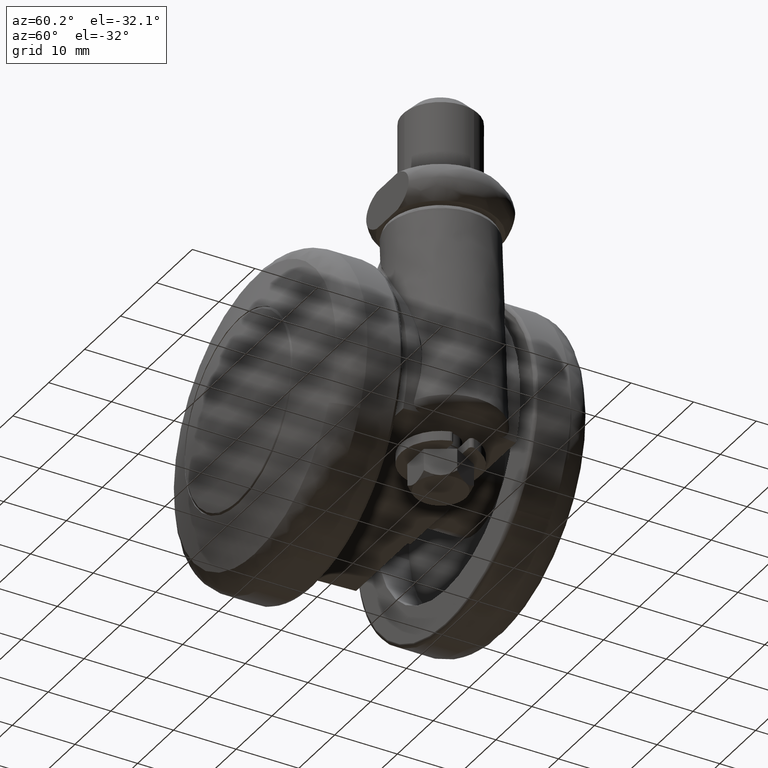
[diagram: clean part render]
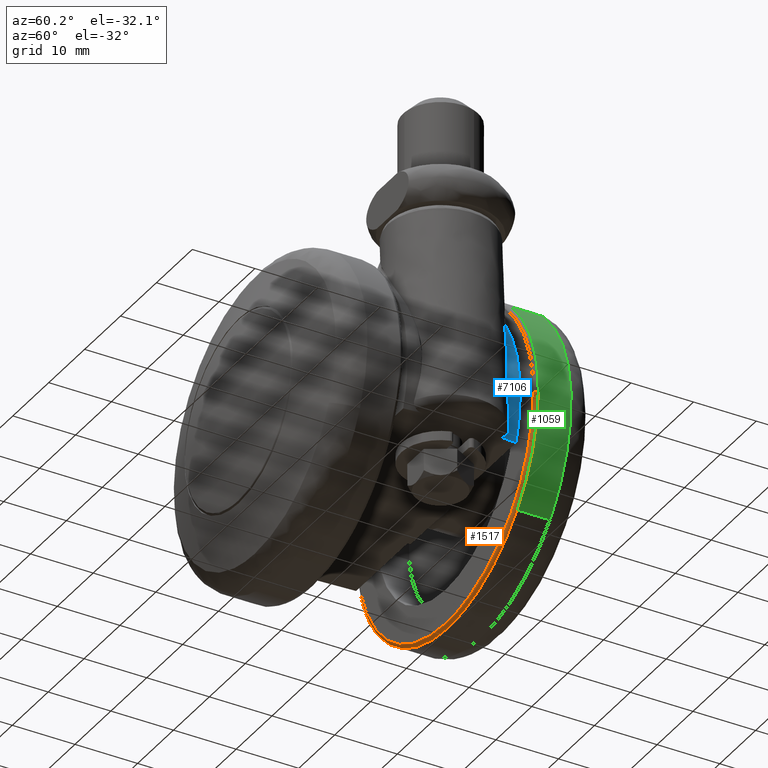
[diagram: same view with three faces highlighted in distinct colors, each labeled with its STEP entity id]
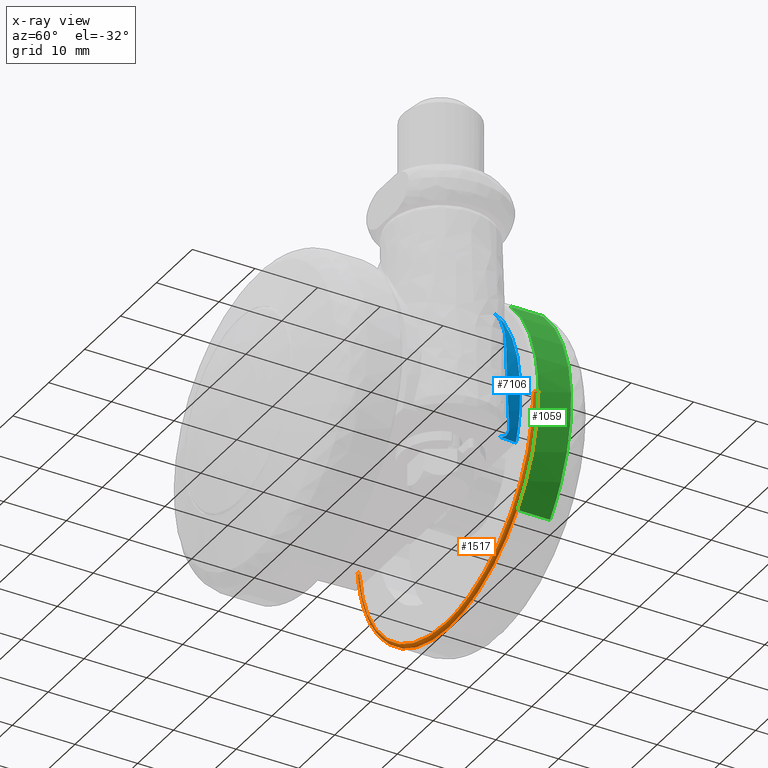
[diagram: x-ray of the same camera — body ghosted, the three highlighted faces saturated]
A machine part, auxiliary view with three faces highlighted in distinct colors.
The next image is the same camera in x-ray (body ghosted, the three faces saturated) — at least one of them is partly hidden behind the body in this view.
Their STEP definitions:

[orange] entity #1517 — the highlighted face is a freeform B-spline surface patch.
#859=CARTESIAN_POINT('',(-19.088892241141721,-10.999999999812241,-16.143549578889889));
#860=VERTEX_POINT('',#859);
#866=CARTESIAN_POINT('',(0.0,-11.0,-25.0));
#867=VERTEX_POINT('',#866);
#868=CARTESIAN_POINT('',(-19.088892241141782,-10.999999999812246,-16.143549578889932));
#869=CARTESIAN_POINT('',(-11.598958060570427,-11.0,-24.999999999999993));
#870=CARTESIAN_POINT('',(0.0,-11.0,-25.0));
#878=(BOUNDED_CURVE()B_SPLINE_CURVE(2,(#868,#869,#870),.UNSPECIFIED.,.F.,.U.)B_SPLINE_CURVE_WITH_KNOTS((3,3),(0.862408078791290,1.0),.UNSPECIFIED.)CURVE()GEOMETRIC_REPRESENTATION_ITEM()RATIONAL_B_SPLINE_CURVE((0.855039474360019,0.838801037257816,1.0))REPRESENTATION_ITEM(''));
#879=EDGE_CURVE('',#860,#867,#878,.T.);
#881=CARTESIAN_POINT('',(24.832790969626899,-10.999999999485651,-2.886605733178072));
#882=VERTEX_POINT('',#881);
#883=CARTESIAN_POINT('',(0.0,-11.0,-25.0));
#884=CARTESIAN_POINT('',(22.262292520671355,-10.999999999999998,-25.000000000000004));
#885=CARTESIAN_POINT('',(24.832790969626899,-10.999999999485654,-2.886605733178072));
#893=(BOUNDED_CURVE()B_SPLINE_CURVE(2,(#883,#884,#885),.UNSPECIFIED.,.F.,.U.)B_SPLINE_CURVE_WITH_KNOTS((3,3),(0.0,0.229999999999983),.UNSPECIFIED.)CURVE()GEOMETRIC_REPRESENTATION_ITEM()RATIONAL_B_SPLINE_CURVE((1.0,0.730538238691643,0.956886118190627))REPRESENTATION_ITEM(''));
#894=EDGE_CURVE('',#867,#882,#893,.T.);
#1028=CARTESIAN_POINT('',(-25.0,-10.999999999470010,3.546573E-015));
#1029=VERTEX_POINT('',#1028);
#1043=CARTESIAN_POINT('',(-25.0,-10.999999999470010,3.546573E-015));
#1044=CARTESIAN_POINT('',(-24.999999999999996,-10.999999999664070,-9.153977769839207));
#1045=CARTESIAN_POINT('',(-19.088892241141782,-10.999999999812246,-16.143549578889932));
#1053=(BOUNDED_CURVE()B_SPLINE_CURVE(2,(#1043,#1044,#1045),.UNSPECIFIED.,.F.,.U.)B_SPLINE_CURVE_WITH_KNOTS((3,3),(0.750000000000000,0.862408078791290),.UNSPECIFIED.)CURVE()GEOMETRIC_REPRESENTATION_ITEM()RATIONAL_B_SPLINE_CURVE((1.0,0.868305743928731,0.855039474360019))REPRESENTATION_ITEM(''));
#1054=EDGE_CURVE('',#1029,#860,#1053,.T.);
#1393=CARTESIAN_POINT('',(24.336135158453711,-10.500000000000000,-2.828873619561032));
#1394=VERTEX_POINT('',#1393);
#1412=CARTESIAN_POINT('',(-24.500000000183661,-10.500000000000000,3.546847E-015));
#1413=VERTEX_POINT('',#1412);
#1427=CARTESIAN_POINT('',(-24.500000000183661,-10.500000000000002,3.546847E-015));
#1428=CARTESIAN_POINT('',(-24.999999998940005,-10.500000000367328,3.497002E-015));
#1429=CARTESIAN_POINT('',(-25.0,-10.999999999470006,3.546573E-015));
#1437=(BOUNDED_CURVE()B_SPLINE_CURVE(2,(#1427,#1428,#1429),.UNSPECIFIED.,.F.,.U.)B_SPLINE_CURVE_WITH_KNOTS((3,3),(-1.736413120311833,-0.276558720197933),.UNSPECIFIED.)CURVE()GEOMETRIC_REPRESENTATION_ITEM()RATIONAL_B_SPLINE_CURVE((0.888510408789768,0.626638727763065,0.883897566369383))REPRESENTATION_ITEM(''));
#1438=EDGE_CURVE('',#1413,#1029,#1437,.T.);
#1443=CARTESIAN_POINT('',(24.336135158453715,-10.500000000000000,-2.828873619561032));
#1444=CARTESIAN_POINT('',(24.832790968605213,-10.500000016570423,-2.886605733058068));
#1445=CARTESIAN_POINT('',(24.832790969626910,-10.999999999485647,-2.886605733178072));
#1453=(BOUNDED_CURVE()B_SPLINE_CURVE(2,(#1443,#1444,#1445),.UNSPECIFIED.,.F.,.U.)B_SPLINE_CURVE_WITH_KNOTS((3,3),(-1.736413086772618,-0.276558720133518),.UNSPECIFIED.)CURVE()GEOMETRIC_REPRESENTATION_ITEM()RATIONAL_B_SPLINE_CURVE((0.850203264524946,0.599621905361615,0.845789311183094))REPRESENTATION_ITEM(''));
#1454=EDGE_CURVE('',#1394,#882,#1453,.T.);
#1459=CARTESIAN_POINT('',(-24.465323893071862,-10.501203881722894,4.967467E-015));
#1460=CARTESIAN_POINT('',(-24.465323893071869,-10.501203881722894,-24.465323893071854));
#1461=CARTESIAN_POINT('',(-2.996039E-015,-10.501203881722894,-24.465323893071862));
#1462=CARTESIAN_POINT('',(21.786167884823620,-10.501203881722892,-24.465323893071865));
#1463=CARTESIAN_POINT('',(24.301690969635029,-10.501203881722896,-2.824869768550792));
#1464=CARTESIAN_POINT('',(-25.038869747941046,-10.461331202961233,5.002585E-015));
#1465=CARTESIAN_POINT('',(-25.038869747941046,-10.461331202961235,-25.038869747941046));
#1466=CARTESIAN_POINT('',(-3.066276E-015,-10.461331202961233,-25.038869747941046));
#1467=CARTESIAN_POINT('',(22.296905708628319,-10.461331202961231,-25.038869747941046));
#1468=CARTESIAN_POINT('',(24.871400742653535,-10.461331202961235,-2.891093798666999));
#1469=CARTESIAN_POINT('',(-24.998783150040587,-11.034862146170063,5.000130E-015));
#1470=CARTESIAN_POINT('',(-24.998783150040577,-11.034862146170068,-24.998783150040577));
#1471=CARTESIAN_POINT('',(-3.061367E-015,-11.034862146170063,-24.998783150040577));
#1472=CARTESIAN_POINT('',(22.261208925883569,-11.034862146170068,-24.998783150040595));
#1473=CARTESIAN_POINT('',(24.831582258399706,-11.034862146170068,-2.886465230534078));
#1481=(BOUNDED_SURFACE()B_SPLINE_SURFACE(2,2,((#1459,#1464,#1469),(#1460,#1465,#1470),(#1461,#1466,#1471),(#1462,#1467,#1472),(#1463,#1468,#1473)),.UNSPECIFIED.,.F.,.F.,.U.)B_SPLINE_SURFACE_WITH_KNOTS((3,2,3),(3,3),(0.0,41.419340094283250,79.525132981023830),(0.0,0.911186219760398),.UNSPECIFIED.)GEOMETRIC_REPRESENTATION_ITEM()RATIONAL_B_SPLINE_SURFACE(((0.915967312822174,0.599412571295306,0.910892985869050),(0.647686698241779,0.423848693891376,0.644098607243267),(0.915967312822174,0.599412571295306,0.910892985869050),(0.669149147408211,0.437893804083691,0.665442157533330),(0.876476406355940,0.573569568541448,0.871620853335334)))REPRESENTATION_ITEM('')SURFACE());
#1482=CARTESIAN_POINT('',(0.0,-10.500000000000000,-24.500000000000000));
#1483=VERTEX_POINT('',#1482);
#1484=CARTESIAN_POINT('',(0.0,-10.500000000000000,-24.500000000000000));
#1485=CARTESIAN_POINT('',(21.817046670095717,-10.500000000000000,-24.499999999999996));
#1486=CARTESIAN_POINT('',(24.336135158453715,-10.499999999999998,-2.828873619561032));
#1494=(BOUNDED_CURVE()B_SPLINE_CURVE(2,(#1484,#1485,#1486),.UNSPECIFIED.,.F.,.U.)B_SPLINE_CURVE_WITH_KNOTS((3,3),(0.0,0.229999999998734),.UNSPECIFIED.)CURVE()GEOMETRIC_REPRESENTATION_ITEM()RATIONAL_B_SPLINE_CURVE((1.0,0.730538238693107,0.956886118188168))REPRESENTATION_ITEM(''));
#1495=EDGE_CURVE('',#1483,#1394,#1494,.T.);
#1496=ORIENTED_EDGE('',*,*,#1495,.T.);
#1497=ORIENTED_EDGE('',*,*,#1454,.T.);
#1498=ORIENTED_EDGE('',*,*,#894,.F.);
#1499=ORIENTED_EDGE('',*,*,#879,.F.);
#1500=ORIENTED_EDGE('',*,*,#1054,.F.);
#1501=ORIENTED_EDGE('',*,*,#1438,.F.);
#1502=CARTESIAN_POINT('',(-24.500000000183661,-10.500000000000000,3.546847E-015));
#1503=CARTESIAN_POINT('',(-24.499999999999993,-10.500000000000000,-24.499999999999993));
#1504=CARTESIAN_POINT('',(0.0,-10.500000000000000,-24.500000000000000));
#1512=(BOUNDED_CURVE()B_SPLINE_CURVE(2,(#1502,#1503,#1504),.UNSPECIFIED.,.F.,.U.)B_SPLINE_CURVE_WITH_KNOTS((3,3),(0.750000000000000,1.0),.UNSPECIFIED.)CURVE()GEOMETRIC_REPRESENTATION_ITEM()RATIONAL_B_SPLINE_CURVE((1.0,0.707106781186547,1.0))REPRESENTATION_ITEM(''));
#1513=EDGE_CURVE('',#1413,#1483,#1512,.T.);
#1514=ORIENTED_EDGE('',*,*,#1513,.T.);
#1515=EDGE_LOOP('',(#1496,#1497,#1498,#1499,#1500,#1501,#1514));
#1516=FACE_OUTER_BOUND('',#1515,.T.);
#1517=ADVANCED_FACE('',(#1516),#1481,.T.);

[blue] entity #7106 — the highlighted face is a freeform B-spline surface patch.
#5330=CARTESIAN_POINT('',(22.859472237033650,7.557258832530200,-5.944913710180160));
#5331=VERTEX_POINT('',#5330);
#5347=CARTESIAN_POINT('',(22.508473345036649,6.008970139218520,-7.500000000000000));
#5348=VERTEX_POINT('',#5347);
#5368=CARTESIAN_POINT('',(22.859472237033639,7.557258832530212,-5.944913710180165));
#5369=CARTESIAN_POINT('',(22.845347138984810,7.564525459840313,-5.996621736036759));
#5370=CARTESIAN_POINT('',(22.817254517073721,7.578977650748001,-6.099460952807962));
#5371=CARTESIAN_POINT('',(22.775110222079459,7.576472985918750,-6.255476035051276));
#5372=CARTESIAN_POINT('',(22.733589654280980,7.555714660842550,-6.410583780616468));
#5373=CARTESIAN_POINT('',(22.679860974324271,7.502475385351057,-6.613337105601644));
#5374=CARTESIAN_POINT('',(22.617181306565389,7.393584463970646,-6.853319514282594));
#5375=CARTESIAN_POINT('',(22.551462283653429,7.172065584943179,-7.120477657406914));
#5376=CARTESIAN_POINT('',(22.503545053919829,6.860126074050095,-7.341158383501779));
#5377=CARTESIAN_POINT('',(22.484720487686559,6.451608159627006,-7.485223112365691));
#5378=CARTESIAN_POINT('',(22.500320880463789,6.160892525935901,-7.494928271106090));
#5379=CARTESIAN_POINT('',(22.508473345036649,6.008970139218521,-7.500000000000034));
#5380=B_SPLINE_CURVE_WITH_KNOTS('',3,(#5368,#5369,#5370,#5371,#5372,#5373,#5374,#5375,#5376,#5377,#5378,#5379),.UNSPECIFIED.,.F.,.U.,(4,1,1,1,1,1,1,1,1,4),(0.0,0.063197402396594,0.125689798764796,0.188384347928890,0.252179452144803,0.378410248853935,0.501744799446879,0.661062130236840,0.822877602179332,1.0),.UNSPECIFIED.);
#5381=EDGE_CURVE('',#5331,#5348,#5380,.T.);
#5506=CARTESIAN_POINT('',(15.987109898350051,8.999999997297421,17.224073311950999));
#5507=VERTEX_POINT('',#5506);
#5552=CARTESIAN_POINT('',(15.987109898350051,8.999999997297421,17.224073311950999));
#5553=CARTESIAN_POINT('',(16.120306098309928,8.986237419856050,17.100462468158071));
#5554=CARTESIAN_POINT('',(16.400290341086290,8.957307879638437,16.840627063629011));
#5555=CARTESIAN_POINT('',(16.828059439204331,8.899916391611106,16.420042618498140));
#5556=CARTESIAN_POINT('',(17.283834082584221,8.830094054547516,15.949873536413270));
#5557=CARTESIAN_POINT('',(17.763083790163730,8.746779224185607,15.426291065152430));
#5558=CARTESIAN_POINT('',(18.358696559718819,8.631125084540905,14.734343928547551));
#5559=CARTESIAN_POINT('',(19.174214730118571,8.454187220517662,13.700937536991409));
#5560=CARTESIAN_POINT('',(19.937457251528961,8.276736107010089,12.585076771176039));
#5561=CARTESIAN_POINT('',(20.596795065058249,8.093829653300572,11.488905978315710));
#5562=CARTESIAN_POINT('',(21.103474150454961,7.926823451379988,10.565633259621590));
#5563=CARTESIAN_POINT('',(21.718404343048299,7.691922747831107,9.304541249700881));
#5564=CARTESIAN_POINT('',(22.270523165710131,7.444499204481090,7.947985056781145));
#5565=CARTESIAN_POINT('',(22.774124979581028,7.186908804466797,6.422330697271317));
#5566=CARTESIAN_POINT('',(23.143930291227129,6.992911037861330,5.004153472505241));
#5567=CARTESIAN_POINT('',(23.436076405493608,6.842329324602295,3.446824175787090));
#5568=CARTESIAN_POINT('',(23.618177521789580,6.777347184170083,1.893486910387614));
#5569=CARTESIAN_POINT('',(23.690125156980510,6.792400230195062,0.317196278516075));
#5570=CARTESIAN_POINT('',(23.651355192239549,6.891654275512122,-1.274846850814564));
#5571=CARTESIAN_POINT('',(23.523986569621929,7.038334505625166,-2.622224582919101));
#5572=CARTESIAN_POINT('',(23.344854786952020,7.204045110374032,-3.800749084159956));
#5573=CARTESIAN_POINT('',(23.146734815529300,7.365225143021434,-4.831388397263618));
#5574=CARTESIAN_POINT('',(22.959515240381851,7.490380552932833,-5.557113749629076));
#5575=CARTESIAN_POINT('',(22.859472237033650,7.557258832530200,-5.944913710180160));
#5576=B_SPLINE_CURVE_WITH_KNOTS('',3,(#5552,#5553,#5554,#5555,#5556,#5557,#5558,#5559,#5560,#5561,#5562,#5563,#5564,#5565,#5566,#5567,#5568,#5569,#5570,#5571,#5572,#5573,#5574,#5575),.UNSPECIFIED.,.F.,.U.,(4,1,1,1,1,1,1,1,1,1,1,1,1,1,1,1,1,1,1,1,1,4),(0.0,0.021329994640280,0.044836582421883,0.070526176644383,0.098404437260415,0.128476552372200,0.178229425956275,0.253813648161927,0.287875128194325,0.329458890949756,0.378582253604620,0.454323879246779,0.503107788537868,0.568964059642171,0.627169356967948,0.689224719074587,0.751942581923512,0.811631865765096,0.875786090670811,0.911076711651361,0.952482784842399,1.0),.UNSPECIFIED.);
#5577=EDGE_CURVE('',#5507,#5331,#5576,.T.);
#6963=CARTESIAN_POINT('',(22.271056962330899,9.0,-7.500000000000000));
#6964=VERTEX_POINT('',#6963);
#6965=CARTESIAN_POINT('',(15.987109898350051,8.999999997297421,17.224073311950999));
#6966=CARTESIAN_POINT('',(27.117918141920033,8.999999998648709,6.892541800001062));
#6967=CARTESIAN_POINT('',(22.271056962330899,9.0,-7.500000000000000));
#6975=(BOUNDED_CURVE()B_SPLINE_CURVE(2,(#6965,#6966,#6967),.UNSPECIFIED.,.F.,.U.)CURVE()GEOMETRIC_REPRESENTATION_ITEM()QUASI_UNIFORM_CURVE()RATIONAL_B_SPLINE_CURVE((1.0,0.839882926631558,1.0))REPRESENTATION_ITEM(''));
#6976=EDGE_CURVE('',#5507,#6964,#6975,.T.);
#6993=CARTESIAN_POINT('',(22.508473345036649,6.008970139218520,-7.500000000000000));
#6994=CARTESIAN_POINT('',(22.445029146177308,7.008649669417468,-7.500000000000000));
#6995=CARTESIAN_POINT('',(22.365875098585281,8.005657028487292,-7.500000000000001));
#6996=CARTESIAN_POINT('',(22.271056962330899,9.0,-7.500000000000000));
#6997=B_SPLINE_CURVE_WITH_KNOTS('',3,(#6993,#6994,#6995,#6996),.UNSPECIFIED.,.F.,.U.,(4,4),(0.0,0.012657862134114),.UNSPECIFIED.);
#6998=EDGE_CURVE('',#5348,#6964,#6997,.T.);
#7077=CARTESIAN_POINT('',(14.896400824027547,9.149119175906902,18.157884528158508));
#7078=CARTESIAN_POINT('',(14.992135447736631,7.506262200548648,18.274579712665908));
#7079=CARTESIAN_POINT('',(15.053446248472456,5.859320285281365,18.349314170555537));
#7080=CARTESIAN_POINT('',(23.486411561752607,9.149119175906897,11.110794718031254));
#7081=CARTESIAN_POINT('',(23.637351563951942,7.506262200548648,11.182200406157198));
#7082=CARTESIAN_POINT('',(23.734017242881563,5.859320285281367,11.227930359923960));
#7083=CARTESIAN_POINT('',(23.486411561752611,9.149119175906895,0.0));
#7084=CARTESIAN_POINT('',(23.637351563951952,7.506262200548647,0.0));
#7085=CARTESIAN_POINT('',(23.734017242881563,5.859320285281363,0.0));
#7086=CARTESIAN_POINT('',(23.486411561752615,9.149119175906897,-4.556155888409634));
#7087=CARTESIAN_POINT('',(23.637351563951945,7.506262200548649,-4.585436912375721));
#7088=CARTESIAN_POINT('',(23.734017242881567,5.859320285281366,-4.604189198185935));
#7089=CARTESIAN_POINT('',(21.782814486766952,9.149119175906895,-8.781829028347238));
#7090=CARTESIAN_POINT('',(21.922805990275091,7.506262200548649,-8.838267164474068));
#7091=CARTESIAN_POINT('',(22.012459982151402,5.859320285281364,-8.874411530889386));
#7099=(BOUNDED_SURFACE()B_SPLINE_SURFACE(2,2,((#7077,#7080,#7083,#7086,#7089),(#7078,#7081,#7084,#7087,#7090),(#7079,#7082,#7085,#7088,#7091)),.UNSPECIFIED.,.F.,.F.,.U.)B_SPLINE_SURFACE_WITH_KNOTS((3,3),(3,2,3),(0.0,3.301149563061193),(0.0,21.944924405582292,31.906678199088621),.UNSPECIFIED.)GEOMETRIC_REPRESENTATION_ITEM()RATIONAL_B_SPLINE_SURFACE(((0.754932392439896,0.737755479075268,0.882321162939723,0.816696523591171,0.784401310838444),(0.754361879122371,0.737197946599375,0.881654380087601,0.816079334227262,0.783808527433469),(0.753996961131293,0.736841331556720,0.881227885119985,0.815684560790999,0.783429364804580)))REPRESENTATION_ITEM('')SURFACE());
#7100=ORIENTED_EDGE('',*,*,#5577,.T.);
#7101=ORIENTED_EDGE('',*,*,#5381,.T.);
#7102=ORIENTED_EDGE('',*,*,#6998,.T.);
#7103=ORIENTED_EDGE('',*,*,#6976,.F.);
#7104=EDGE_LOOP('',(#7100,#7101,#7102,#7103));
#7105=FACE_OUTER_BOUND('',#7104,.T.);
#7106=ADVANCED_FACE('',(#7105),#7099,.T.);

[green] entity #1059 — the highlighted face is a freeform B-spline surface patch.
#842=CARTESIAN_POINT('',(-19.088892255726641,-16.249584999999911,-16.143549561643990));
#843=VERTEX_POINT('',#842);
#859=CARTESIAN_POINT('',(-19.088892241141721,-10.999999999812241,-16.143549578889889));
#860=VERTEX_POINT('',#859);
#861=CARTESIAN_POINT('',(-19.088892241141721,-10.999999999812241,-16.143549578889889));
#862=CARTESIAN_POINT('',(-19.088892255726641,-16.249584999999911,-16.143549561643990));
#863=QUASI_UNIFORM_CURVE('',1,(#861,#862),.UNSPECIFIED.,.F.,.U.);
#864=EDGE_CURVE('',#860,#843,#863,.T.);
#913=CARTESIAN_POINT('',(-17.208864003469280,-10.999999999854440,18.134359644335351));
#914=VERTEX_POINT('',#913);
#928=CARTESIAN_POINT('',(-17.208864008154691,-16.249584999999950,18.134359639889080));
#929=VERTEX_POINT('',#928);
#930=CARTESIAN_POINT('',(-17.208864003469280,-10.999999999854440,18.134359644335351));
#931=CARTESIAN_POINT('',(-17.208864008154691,-16.249584999999950,18.134359639889080));
#932=QUASI_UNIFORM_CURVE('',1,(#930,#931),.UNSPECIFIED.,.F.,.U.);
#933=EDGE_CURVE('',#914,#929,#932,.T.);
#998=CARTESIAN_POINT('',(-17.208864392343848,-10.868760374453981,18.134359275307190));
#999=CARTESIAN_POINT('',(-34.334108954376731,-10.868760374453979,1.883108989611296));
#1000=CARTESIAN_POINT('',(-19.088891073511626,-10.868760374453981,-16.143550959550634));
#1001=CARTESIAN_POINT('',(-17.208864392343848,-16.384105615752510,18.134359275307190));
#1002=CARTESIAN_POINT('',(-34.334108954376731,-16.384105615752510,1.883108989611296));
#1003=CARTESIAN_POINT('',(-19.088891073511626,-16.384105615752510,-16.143550959550634));
#1011=(BOUNDED_SURFACE()B_SPLINE_SURFACE(2,1,((#998,#1001),(#999,#1002),(#1000,#1003)),.UNSPECIFIED.,.F.,.F.,.U.)B_SPLINE_SURFACE_WITH_KNOTS((3,3),(2,2),(0.0,39.753588967719757),(0.0,5.515345241298528),.UNSPECIFIED.)GEOMETRIC_REPRESENTATION_ITEM()RATIONAL_B_SPLINE_SURFACE(((1.0,1.0),(0.718822509939086,0.718822509939086),(0.977505800795127,0.977505800795127)))REPRESENTATION_ITEM('')SURFACE());
#1012=CARTESIAN_POINT('',(-17.208864008154691,-16.249584999999957,18.134359639889077));
#1013=CARTESIAN_POINT('',(-25.000000000000004,-16.249584999999950,10.740848276577712));
#1014=CARTESIAN_POINT('',(-25.0,-16.249584999999950,1.789254E-015));
#1015=CARTESIAN_POINT('',(-24.999999999999996,-16.249584999999954,-9.153977757031967));
#1016=CARTESIAN_POINT('',(-19.088892255726641,-16.249584999999914,-16.143549561643990));
#1024=(BOUNDED_CURVE()B_SPLINE_CURVE(2,(#1012,#1013,#1014,#1015,#1016),.UNSPECIFIED.,.F.,.U.)B_SPLINE_CURVE_WITH_KNOTS((3,2,3),(0.621049520264628,0.750000000000000,0.862408078654733),.UNSPECIFIED.)CURVE()GEOMETRIC_REPRESENTATION_ITEM()RATIONAL_B_SPLINE_CURVE((0.853699661842961,0.848925115691072,1.0,0.868305744088719,0.855039474392251))REPRESENTATION_ITEM(''));
#1025=EDGE_CURVE('',#929,#843,#1024,.T.);
#1026=ORIENTED_EDGE('',*,*,#1025,.F.);
#1027=ORIENTED_EDGE('',*,*,#933,.F.);
#1028=CARTESIAN_POINT('',(-25.0,-10.999999999470010,3.546573E-015));
#1029=VERTEX_POINT('',#1028);
#1030=CARTESIAN_POINT('',(-17.208864003469277,-10.999999999854438,18.134359644335344));
#1031=CARTESIAN_POINT('',(-24.999999999999943,-10.999999999697710,10.740848284229289));
#1032=CARTESIAN_POINT('',(-25.0,-10.999999999470012,3.546573E-015));
#1040=(BOUNDED_CURVE()B_SPLINE_CURVE(2,(#1030,#1031,#1032),.UNSPECIFIED.,.F.,.U.)B_SPLINE_CURVE_WITH_KNOTS((3,3),(0.621049520186644,0.749999999999999),.UNSPECIFIED.)CURVE()GEOMETRIC_REPRESENTATION_ITEM()RATIONAL_B_SPLINE_CURVE((0.853699661848736,0.848925115599708,0.999999999999998))REPRESENTATION_ITEM(''));
#1041=EDGE_CURVE('',#914,#1029,#1040,.T.);
#1042=ORIENTED_EDGE('',*,*,#1041,.T.);
#1043=CARTESIAN_POINT('',(-25.0,-10.999999999470010,3.546573E-015));
#1044=CARTESIAN_POINT('',(-24.999999999999996,-10.999999999664070,-9.153977769839207));
#1045=CARTESIAN_POINT('',(-19.088892241141782,-10.999999999812246,-16.143549578889932));
#1053=(BOUNDED_CURVE()B_SPLINE_CURVE(2,(#1043,#1044,#1045),.UNSPECIFIED.,.F.,.U.)B_SPLINE_CURVE_WITH_KNOTS((3,3),(0.750000000000000,0.862408078791290),.UNSPECIFIED.)CURVE()GEOMETRIC_REPRESENTATION_ITEM()RATIONAL_B_SPLINE_CURVE((1.0,0.868305743928731,0.855039474360019))REPRESENTATION_ITEM(''));
#1054=EDGE_CURVE('',#1029,#860,#1053,.T.);
#1055=ORIENTED_EDGE('',*,*,#1054,.T.);
#1056=ORIENTED_EDGE('',*,*,#864,.T.);
#1057=EDGE_LOOP('',(#1026,#1027,#1042,#1055,#1056));
#1058=FACE_OUTER_BOUND('',#1057,.T.);
#1059=ADVANCED_FACE('',(#1058),#1011,.T.);